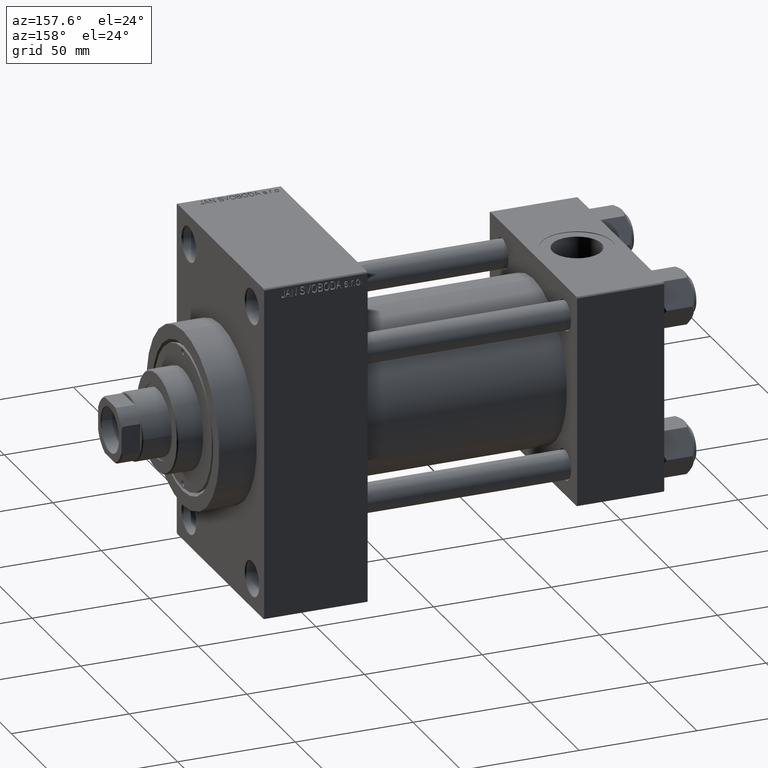
[diagram: clean part render]
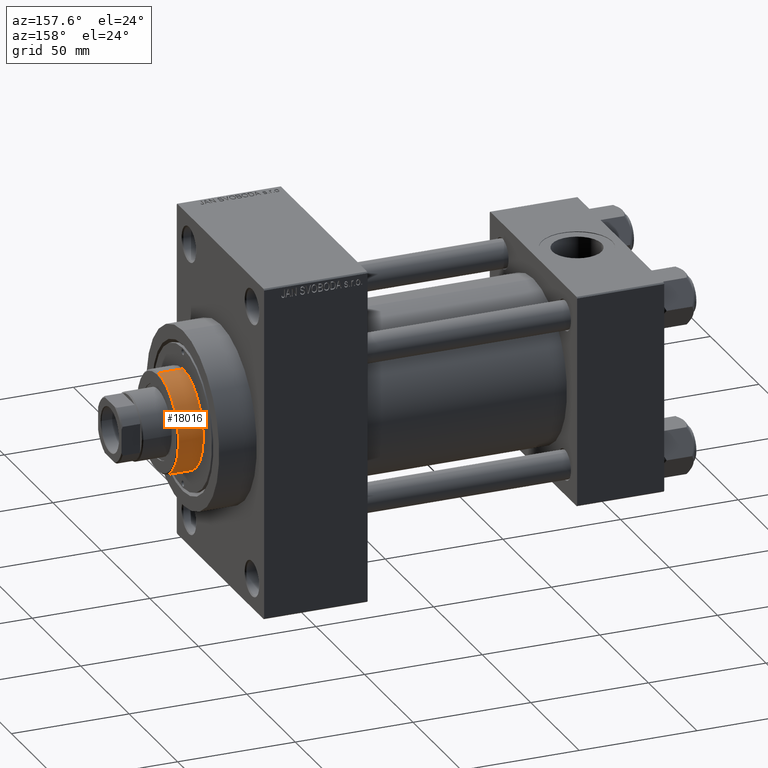
[diagram: same view with one face highlighted and labeled with its STEP entity id]
A machine part, auxiliary view. The second image highlights one B-rep face of the part: STEP entity #18016.
In plain terms, the highlighted cylindrical surface (partial cylindrical patch) has radius 21 mm, axis along (-1, 0, 0).
Its self-contained STEP definition (entity closure, byte-faithful):
#604 = CARTESIAN_POINT ( 'NONE',  ( 0.000000000000000000, 0.000000000000000000, 43.25999999999999801 ) ) ;
#3933 = DIRECTION ( 'NONE',  ( -0.000000000000000000, -0.000000000000000000, -1.000000000000000000 ) ) ;
#5571 = DIRECTION ( 'NONE',  ( -0.000000000000000000, -0.000000000000000000, -1.000000000000000000 ) ) ;
#6226 = AXIS2_PLACEMENT_3D ( 'NONE', #38357, #42409, #9549 ) ;
#7525 = CARTESIAN_POINT ( 'NONE',  ( 21.00000000000000000, 2.571758278209441661E-15, 54.26000000000000512 ) ) ;
#7986 = CYLINDRICAL_SURFACE ( 'NONE', #27616, 21.00000000000000000 ) ;
#9549 = DIRECTION ( 'NONE',  ( 1.000000000000000000, 0.000000000000000000, 0.000000000000000000 ) ) ;
#10896 = DIRECTION ( 'NONE',  ( 1.000000000000000000, 0.000000000000000000, 0.000000000000000000 ) ) ;
#11148 = CARTESIAN_POINT ( 'NONE',  ( -21.00000000000000000, 0.000000000000000000, 53.76000000000001933 ) ) ;
#12209 = VERTEX_POINT ( 'NONE', #11148 ) ;
#14023 = CIRCLE ( 'NONE', #26299, 21.00000000000000000 ) ;
#15223 = DIRECTION ( 'NONE',  ( 0.000000000000000000, 0.000000000000000000, 1.000000000000000000 ) ) ;
#16137 = DIRECTION ( 'NONE',  ( -1.000000000000000000, 0.000000000000000000, 0.000000000000000000 ) ) ;
#17826 = LINE ( 'NONE', #31744, #43726 ) ;
#18016 = ADVANCED_FACE ( 'NONE', ( #29836 ), #7986, .T. ) ;
#19578 = ORIENTED_EDGE ( 'NONE', *, *, #28290, .T. ) ;
#20109 = VERTEX_POINT ( 'NONE', #28758 ) ;
#22483 = EDGE_CURVE ( 'NONE', #12209, #38394, #17826, .T. ) ;
#23578 = EDGE_CURVE ( 'NONE', #43934, #12209, #42965, .T. ) ;
#26299 = AXIS2_PLACEMENT_3D ( 'NONE', #604, #15223, #10896 ) ;
#26474 = VECTOR ( 'NONE', #3933, 1000.000000000000000 ) ;
#27616 = AXIS2_PLACEMENT_3D ( 'NONE', #42018, #5571, #16137 ) ;
#28290 = EDGE_CURVE ( 'NONE', #38394, #20109, #14023, .T. ) ;
#28758 = CARTESIAN_POINT ( 'NONE',  ( 21.00000000000000000, 2.571758278209441661E-15, 43.25999999999999801 ) ) ;
#29726 = ORIENTED_EDGE ( 'NONE', *, *, #22483, .T. ) ;
#29836 = FACE_OUTER_BOUND ( 'NONE', #39639, .T. ) ;
#31744 = CARTESIAN_POINT ( 'NONE',  ( -21.00000000000000000, 0.000000000000000000, 54.26000000000000512 ) ) ;
#32457 = DIRECTION ( 'NONE',  ( -0.000000000000000000, -0.000000000000000000, -1.000000000000000000 ) ) ;
#34798 = ORIENTED_EDGE ( 'NONE', *, *, #44632, .F. ) ;
#37508 = CARTESIAN_POINT ( 'NONE',  ( 21.00000000000000000, 2.571758278209441661E-15, 53.76000000000001933 ) ) ;
#38357 = CARTESIAN_POINT ( 'NONE',  ( 0.000000000000000000, 0.000000000000000000, 53.76000000000001933 ) ) ;
#38394 = VERTEX_POINT ( 'NONE', #42842 ) ;
#39639 = EDGE_LOOP ( 'NONE', ( #34798, #44650, #29726, #19578 ) ) ;
#40402 = LINE ( 'NONE', #7525, #26474 ) ;
#42018 = CARTESIAN_POINT ( 'NONE',  ( 0.000000000000000000, 0.000000000000000000, 54.26000000000000512 ) ) ;
#42409 = DIRECTION ( 'NONE',  ( 0.000000000000000000, 0.000000000000000000, -1.000000000000000000 ) ) ;
#42842 = CARTESIAN_POINT ( 'NONE',  ( -21.00000000000000000, 0.000000000000000000, 43.25999999999999801 ) ) ;
#42965 = CIRCLE ( 'NONE', #6226, 21.00000000000000000 ) ;
#43726 = VECTOR ( 'NONE', #32457, 1000.000000000000000 ) ;
#43934 = VERTEX_POINT ( 'NONE', #37508 ) ;
#44632 = EDGE_CURVE ( 'NONE', #43934, #20109, #40402, .T. ) ;
#44650 = ORIENTED_EDGE ( 'NONE', *, *, #23578, .T. ) ;